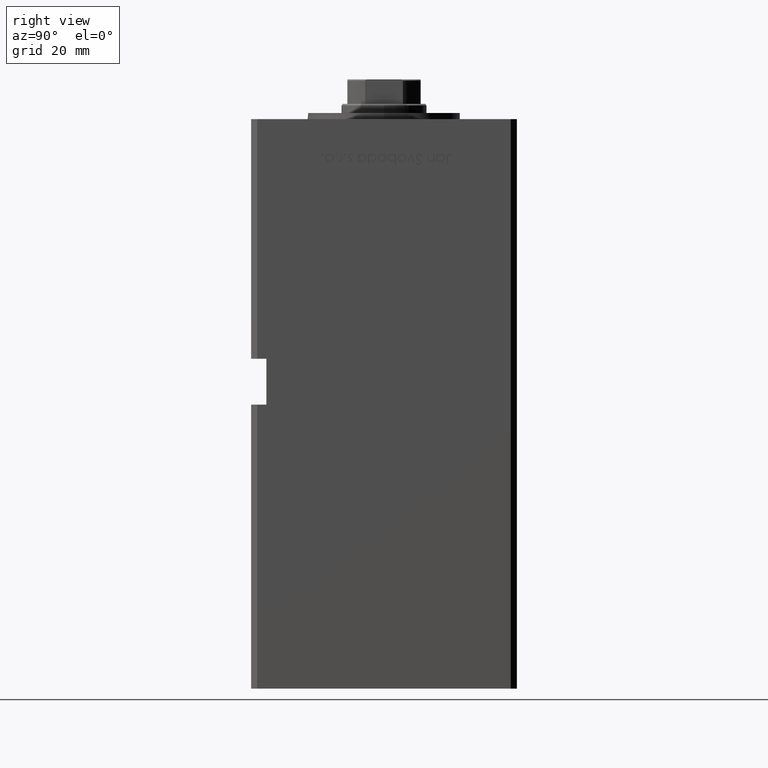
[diagram: clean part render]
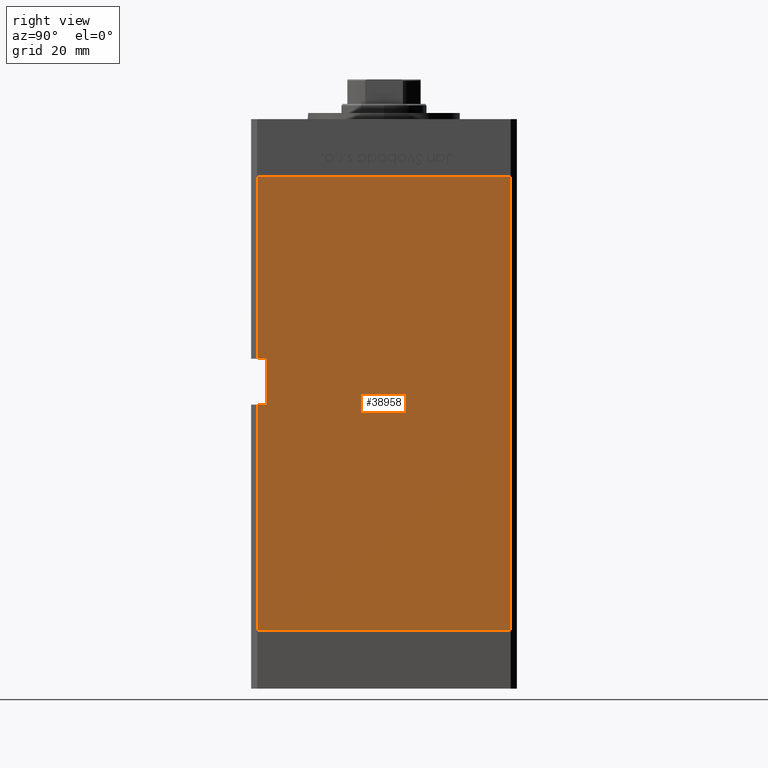
[diagram: same view with one face highlighted and labeled with its STEP entity id]
A machine part, right view. The second image highlights one B-rep face of the part: STEP entity #38958.
In plain terms, the highlighted planar face has unit normal (1, -0, 0).
Its self-contained STEP definition (entity closure, byte-faithful):
#12 = DIRECTION ( 'NONE',  ( -0.000000000000000000, -0.000000000000000000, -1.000000000000000000 ) ) ;
#798 = LINE ( 'NONE', #20720, #21261 ) ;
#977 = CARTESIAN_POINT ( 'NONE',  ( 49.99999999999998579, -41.49999999999999289, 148.5000000000000000 ) ) ;
#2206 = DIRECTION ( 'NONE',  ( 1.000000000000000000, -3.344045254895050480E-16, 0.000000000000000000 ) ) ;
#3008 = EDGE_CURVE ( 'NONE', #50196, #23769, #10573, .T. ) ;
#3187 = CARTESIAN_POINT ( 'NONE',  ( 49.99999999999998579, -41.49999999999999289, 74.00000000000000000 ) ) ;
#3533 = AXIS2_PLACEMENT_3D ( 'NONE', #22387, #2206, #47685 ) ;
#4211 = ORIENTED_EDGE ( 'NONE', *, *, #39492, .F. ) ;
#5659 = EDGE_CURVE ( 'NONE', #31862, #46706, #798, .T. ) ;
#5965 = FACE_OUTER_BOUND ( 'NONE', #14208, .T. ) ;
#7003 = ORIENTED_EDGE ( 'NONE', *, *, #23235, .F. ) ;
#7161 = LINE ( 'NONE', #15243, #37037 ) ;
#7962 = DIRECTION ( 'NONE',  ( -3.344045254895050973E-16, -1.000000000000000000, 0.000000000000000000 ) ) ;
#9568 = DIRECTION ( 'NONE',  ( -0.000000000000000000, -0.000000000000000000, 1.000000000000000000 ) ) ;
#9960 = CARTESIAN_POINT ( 'NONE',  ( 50.00000000000001421, 41.49999999999999289, 148.5000000000000000 ) ) ;
#10573 = LINE ( 'NONE', #977, #23892 ) ;
#10980 = CARTESIAN_POINT ( 'NONE',  ( 49.99999999999998579, -38.50000000000000000, 89.00000000000000000 ) ) ;
#13608 = LINE ( 'NONE', #30033, #35367 ) ;
#14208 = EDGE_LOOP ( 'NONE', ( #21668, #28867, #46985, #7003, #14915, #32752, #4211, #20810 ) ) ;
#14915 = ORIENTED_EDGE ( 'NONE', *, *, #40349, .T. ) ;
#15027 = EDGE_CURVE ( 'NONE', #40859, #23769, #20081, .T. ) ;
#15054 = CARTESIAN_POINT ( 'NONE',  ( 50.00000000000001421, 41.49999999999999289, 148.5000000000000000 ) ) ;
#15067 = EDGE_CURVE ( 'NONE', #43958, #50196, #7161, .T. ) ;
#15243 = CARTESIAN_POINT ( 'NONE',  ( 49.99999999999998579, -38.50000000000000000, 74.00000000000000000 ) ) ;
#17320 = VECTOR ( 'NONE', #31473, 1000.000000000000000 ) ;
#18681 = CARTESIAN_POINT ( 'NONE',  ( 50.00000000000001421, 41.49999999999999289, 0.000000000000000000 ) ) ;
#18878 = VERTEX_POINT ( 'NONE', #10980 ) ;
#19956 = VECTOR ( 'NONE', #35521, 1000.000000000000000 ) ;
#20081 = LINE ( 'NONE', #31663, #39599 ) ;
#20720 = CARTESIAN_POINT ( 'NONE',  ( 49.99999999999998579, -41.49999999999999289, 148.5000000000000000 ) ) ;
#20755 = VERTEX_POINT ( 'NONE', #50221 ) ;
#20796 = EDGE_CURVE ( 'NONE', #43958, #18878, #13608, .T. ) ;
#20810 = ORIENTED_EDGE ( 'NONE', *, *, #20796, .F. ) ;
#21261 = VECTOR ( 'NONE', #12, 1000.000000000000000 ) ;
#21668 = ORIENTED_EDGE ( 'NONE', *, *, #15067, .T. ) ;
#22387 = CARTESIAN_POINT ( 'NONE',  ( 50.00000000000001421, 41.49999999999999289, 148.5000000000000000 ) ) ;
#22954 = DIRECTION ( 'NONE',  ( -0.000000000000000000, -0.000000000000000000, -1.000000000000000000 ) ) ;
#23235 = EDGE_CURVE ( 'NONE', #20755, #40859, #30680, .T. ) ;
#23591 = DIRECTION ( 'NONE',  ( -0.000000000000000000, -1.000000000000000000, -0.000000000000000000 ) ) ;
#23769 = VERTEX_POINT ( 'NONE', #29706 ) ;
#23892 = VECTOR ( 'NONE', #22954, 1000.000000000000000 ) ;
#26692 = PLANE ( 'NONE',  #3533 ) ;
#27694 = LINE ( 'NONE', #15054, #17320 ) ;
#28867 = ORIENTED_EDGE ( 'NONE', *, *, #3008, .T. ) ;
#29681 = CARTESIAN_POINT ( 'NONE',  ( 49.99999999999998579, -41.49999999999999289, 148.5000000000000000 ) ) ;
#29706 = CARTESIAN_POINT ( 'NONE',  ( 49.99999999999998579, -41.49999999999999289, 0.000000000000000000 ) ) ;
#30033 = CARTESIAN_POINT ( 'NONE',  ( 49.99999999999998579, -38.50000000000000000, 89.00000000000000000 ) ) ;
#30680 = LINE ( 'NONE', #9960, #19956 ) ;
#31473 = DIRECTION ( 'NONE',  ( -3.344045254895050973E-16, -1.000000000000000000, 0.000000000000000000 ) ) ;
#31663 = CARTESIAN_POINT ( 'NONE',  ( 50.00000000000001421, 41.49999999999999289, 0.000000000000000000 ) ) ;
#31862 = VERTEX_POINT ( 'NONE', #29681 ) ;
#32752 = ORIENTED_EDGE ( 'NONE', *, *, #5659, .T. ) ;
#35367 = VECTOR ( 'NONE', #9568, 1000.000000000000000 ) ;
#35521 = DIRECTION ( 'NONE',  ( -0.000000000000000000, -0.000000000000000000, -1.000000000000000000 ) ) ;
#35878 = CARTESIAN_POINT ( 'NONE',  ( 49.99999999999998579, -38.49999999999999289, 74.00000000000000000 ) ) ;
#37037 = VECTOR ( 'NONE', #23591, 1000.000000000000000 ) ;
#38958 = ADVANCED_FACE ( 'NONE', ( #5965 ), #26692, .T. ) ;
#39492 = EDGE_CURVE ( 'NONE', #18878, #46706, #45976, .T. ) ;
#39599 = VECTOR ( 'NONE', #7962, 1000.000000000000000 ) ;
#40349 = EDGE_CURVE ( 'NONE', #20755, #31862, #27694, .T. ) ;
#40859 = VERTEX_POINT ( 'NONE', #18681 ) ;
#41133 = CARTESIAN_POINT ( 'NONE',  ( 49.99999999999998579, -38.50000000000000000, 89.00000000000000000 ) ) ;
#41396 = DIRECTION ( 'NONE',  ( -0.000000000000000000, -1.000000000000000000, -0.000000000000000000 ) ) ;
#43958 = VERTEX_POINT ( 'NONE', #35878 ) ;
#45976 = LINE ( 'NONE', #41133, #52568 ) ;
#46706 = VERTEX_POINT ( 'NONE', #51589 ) ;
#46985 = ORIENTED_EDGE ( 'NONE', *, *, #15027, .F. ) ;
#47685 = DIRECTION ( 'NONE',  ( 3.344045254895050480E-16, 1.000000000000000000, 0.000000000000000000 ) ) ;
#50196 = VERTEX_POINT ( 'NONE', #3187 ) ;
#50221 = CARTESIAN_POINT ( 'NONE',  ( 50.00000000000001421, 41.49999999999999289, 148.5000000000000000 ) ) ;
#51589 = CARTESIAN_POINT ( 'NONE',  ( 49.99999999999998579, -41.49999999999999289, 89.00000000000000000 ) ) ;
#52568 = VECTOR ( 'NONE', #41396, 1000.000000000000000 ) ;